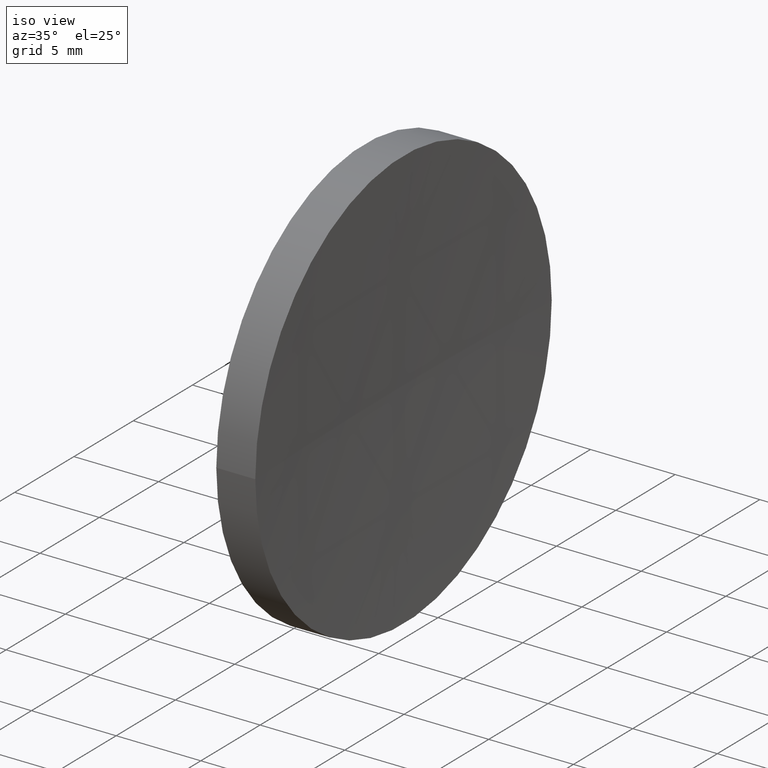
[diagram: clean part render]
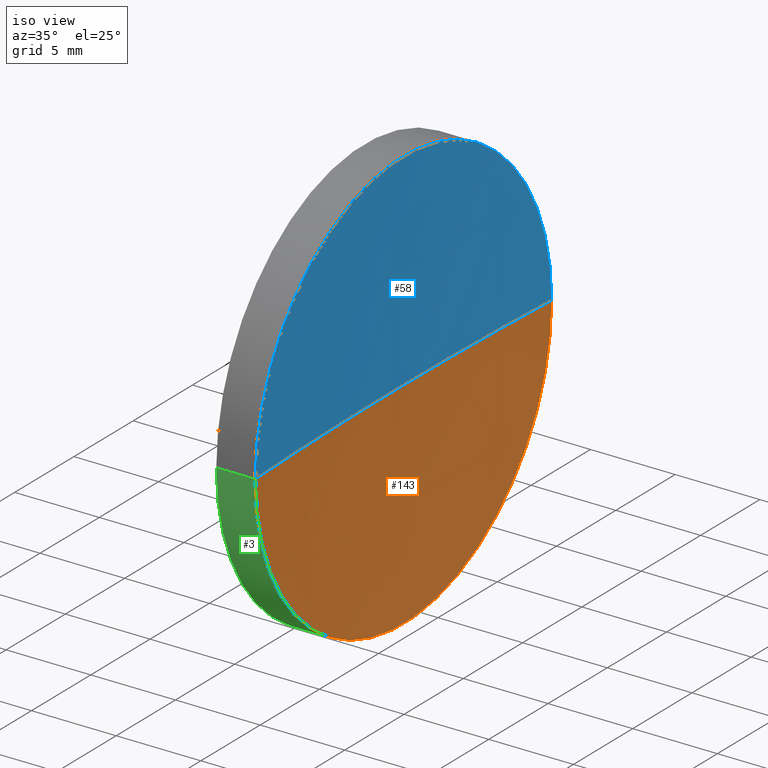
[diagram: same view with three faces highlighted in distinct colors, each labeled with its STEP entity id]
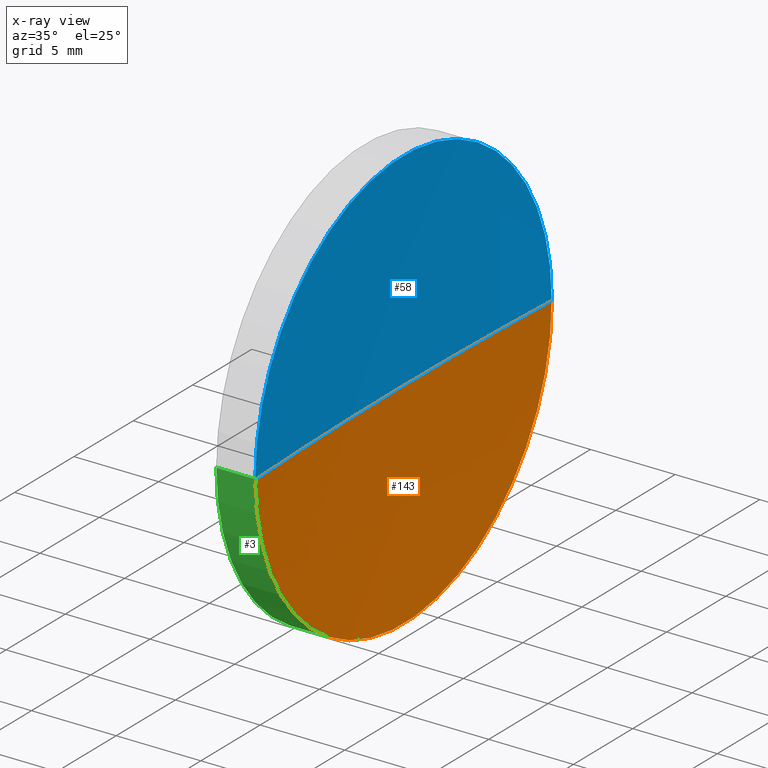
[diagram: x-ray of the same camera — body ghosted, the three highlighted faces saturated]
A machine part, iso view with three faces highlighted in distinct colors.
The next image is the same camera in x-ray (body ghosted, the three faces saturated) — at least one of them is partly hidden behind the body in this view.
Their STEP definitions:

[orange] entity #143 — the highlighted spherical surface has radius 258.18 mm.
#9 = EDGE_CURVE ( 'NONE', #98, #16, #32, .T. ) ;
#11 = DIRECTION ( 'NONE',  ( 0.0000000000000000000, -1.000000000000000000, -1.224646799147353200E-016 ) ) ;
#12 = DIRECTION ( 'NONE',  ( -9.351536221073556900E-032, -1.224646799147353200E-016, 1.000000000000000000 ) ) ;
#16 = VERTEX_POINT ( 'NONE', #48 ) ;
#32 = CIRCLE ( 'NONE', #59, 258.1799999999999500 ) ;
#35 = DIRECTION ( 'NONE',  ( -5.551115123125785700E-016, -1.000000000000000000, 0.0000000000000000000 ) ) ;
#36 = DIRECTION ( 'NONE',  ( -1.000000000000000000, 7.636108817321419600E-016, -0.0000000000000000000 ) ) ;
#38 = DIRECTION ( 'NONE',  ( -1.000000000000000000, 0.0000000000000000000, 0.0000000000000000000 ) ) ;
#39 = EDGE_CURVE ( 'NONE', #94, #98, #92, .T. ) ;
#40 = CARTESIAN_POINT ( 'NONE',  ( 59.66096665815475600, 20.07872591329412500, 0.0000000000000000000 ) ) ;
#48 = CARTESIAN_POINT ( 'NONE',  ( 59.35819015802113100, 32.57872591329334700, 0.0000000000000000000 ) ) ;
#59 = AXIS2_PLACEMENT_3D ( 'NONE', #155, #122, #38 ) ;
#66 = DIRECTION ( 'NONE',  ( -8.600379770897487800E-016, -1.000000000000000000, 0.0000000000000000000 ) ) ;
#69 = ORIENTED_EDGE ( 'NONE', *, *, #39, .F. ) ;
#72 = AXIS2_PLACEMENT_3D ( 'NONE', #89, #12, #11 ) ;
#77 = AXIS2_PLACEMENT_3D ( 'NONE', #121, #36, #35 ) ;
#81 = ORIENTED_EDGE ( 'NONE', *, *, #9, .F. ) ;
#82 = CIRCLE ( 'NONE', #72, 258.1799999999999500 ) ;
#86 = DIRECTION ( 'NONE',  ( 0.0000000000000000000, 0.0000000000000000000, 1.000000000000000000 ) ) ;
#89 = CARTESIAN_POINT ( 'NONE',  ( 317.5381901580211100, 32.57872591329316900, 0.0000000000000000000 ) ) ;
#92 = CIRCLE ( 'NONE', #77, 12.49999999999999300 ) ;
#94 = VERTEX_POINT ( 'NONE', #158 ) ;
#98 = VERTEX_POINT ( 'NONE', #40 ) ;
#108 = ORIENTED_EDGE ( 'NONE', *, *, #137, .T. ) ;
#110 = FACE_OUTER_BOUND ( 'NONE', #131, .T. ) ;
#121 = CARTESIAN_POINT ( 'NONE',  ( 59.66096665815478400, 32.57872591329309100, 0.0000000000000000000 ) ) ;
#122 = DIRECTION ( 'NONE',  ( 0.0000000000000000000, -0.0000000000000000000, -1.000000000000000000 ) ) ;
#127 = CARTESIAN_POINT ( 'NONE',  ( 317.5381901580211100, 32.57872591329316900, 0.0000000000000000000 ) ) ;
#131 = EDGE_LOOP ( 'NONE', ( #69, #108, #81 ) ) ;
#137 = EDGE_CURVE ( 'NONE', #94, #16, #82, .T. ) ;
#143 = ADVANCED_FACE ( 'NONE', ( #110 ), #146, .F. ) ;
#145 = AXIS2_PLACEMENT_3D ( 'NONE', #127, #86, #66 ) ;
#146 = SPHERICAL_SURFACE ( 'NONE', #145, 258.1799999999999500 ) ;
#155 = CARTESIAN_POINT ( 'NONE',  ( 317.5381901580211100, 32.57872591329316900, 0.0000000000000000000 ) ) ;
#158 = CARTESIAN_POINT ( 'NONE',  ( 59.66096665815476300, 45.07872591329232400, 1.530808498934064100E-015 ) ) ;

[blue] entity #58 — the highlighted spherical surface has radius 258.18 mm.
#9 = EDGE_CURVE ( 'NONE', #98, #16, #32, .T. ) ;
#11 = DIRECTION ( 'NONE',  ( 0.0000000000000000000, -1.000000000000000000, -1.224646799147353200E-016 ) ) ;
#12 = DIRECTION ( 'NONE',  ( -9.351536221073556900E-032, -1.224646799147353200E-016, 1.000000000000000000 ) ) ;
#16 = VERTEX_POINT ( 'NONE', #48 ) ;
#17 = SPHERICAL_SURFACE ( 'NONE', #154, 258.1799999999999500 ) ;
#21 = CARTESIAN_POINT ( 'NONE',  ( 59.66096665815478400, 32.57872591329309100, 0.0000000000000000000 ) ) ;
#32 = CIRCLE ( 'NONE', #59, 258.1799999999999500 ) ;
#38 = DIRECTION ( 'NONE',  ( -1.000000000000000000, 0.0000000000000000000, 0.0000000000000000000 ) ) ;
#40 = CARTESIAN_POINT ( 'NONE',  ( 59.66096665815475600, 20.07872591329412500, 0.0000000000000000000 ) ) ;
#47 = CARTESIAN_POINT ( 'NONE',  ( 317.5381901580211100, 32.57872591329316900, 0.0000000000000000000 ) ) ;
#48 = CARTESIAN_POINT ( 'NONE',  ( 59.35819015802113100, 32.57872591329334700, 0.0000000000000000000 ) ) ;
#52 = EDGE_CURVE ( 'NONE', #98, #94, #106, .T. ) ;
#58 = ADVANCED_FACE ( 'NONE', ( #75 ), #17, .F. ) ;
#59 = AXIS2_PLACEMENT_3D ( 'NONE', #155, #122, #38 ) ;
#60 = DIRECTION ( 'NONE',  ( -5.551115123125785700E-016, -1.000000000000000000, 0.0000000000000000000 ) ) ;
#61 = DIRECTION ( 'NONE',  ( -8.600379770897487800E-016, -1.000000000000000000, 0.0000000000000000000 ) ) ;
#72 = AXIS2_PLACEMENT_3D ( 'NONE', #89, #12, #11 ) ;
#73 = EDGE_LOOP ( 'NONE', ( #133, #118, #107 ) ) ;
#75 = FACE_OUTER_BOUND ( 'NONE', #73, .T. ) ;
#82 = CIRCLE ( 'NONE', #72, 258.1799999999999500 ) ;
#89 = CARTESIAN_POINT ( 'NONE',  ( 317.5381901580211100, 32.57872591329316900, 0.0000000000000000000 ) ) ;
#93 = AXIS2_PLACEMENT_3D ( 'NONE', #21, #120, #60 ) ;
#94 = VERTEX_POINT ( 'NONE', #158 ) ;
#98 = VERTEX_POINT ( 'NONE', #40 ) ;
#106 = CIRCLE ( 'NONE', #93, 12.49999999999999300 ) ;
#107 = ORIENTED_EDGE ( 'NONE', *, *, #9, .T. ) ;
#118 = ORIENTED_EDGE ( 'NONE', *, *, #52, .F. ) ;
#120 = DIRECTION ( 'NONE',  ( -1.000000000000000000, 7.636108817321419600E-016, -0.0000000000000000000 ) ) ;
#122 = DIRECTION ( 'NONE',  ( 0.0000000000000000000, -0.0000000000000000000, -1.000000000000000000 ) ) ;
#133 = ORIENTED_EDGE ( 'NONE', *, *, #137, .F. ) ;
#134 = DIRECTION ( 'NONE',  ( 0.0000000000000000000, 0.0000000000000000000, 1.000000000000000000 ) ) ;
#137 = EDGE_CURVE ( 'NONE', #94, #16, #82, .T. ) ;
#154 = AXIS2_PLACEMENT_3D ( 'NONE', #47, #134, #61 ) ;
#155 = CARTESIAN_POINT ( 'NONE',  ( 317.5381901580211100, 32.57872591329316900, 0.0000000000000000000 ) ) ;
#158 = CARTESIAN_POINT ( 'NONE',  ( 59.66096665815476300, 45.07872591329232400, 1.530808498934064100E-015 ) ) ;

[green] entity #3 — the highlighted cylindrical surface (partial cylindrical patch) has radius 12.5 mm, axis along (-1, 0, -0).
#2 = CARTESIAN_POINT ( 'NONE',  ( 55.00739462442118100, 32.57872591329309800, 0.0000000000000000000 ) ) ;
#3 = ADVANCED_FACE ( 'NONE', ( #43 ), #111, .T. ) ;
#14 = CIRCLE ( 'NONE', #80, 12.49999999999999600 ) ;
#22 = DIRECTION ( 'NONE',  ( -1.000000000000000000, 7.636108817321419600E-016, -0.0000000000000000000 ) ) ;
#25 = VECTOR ( 'NONE', #148, 1000.000000000000000 ) ;
#33 = LINE ( 'NONE', #104, #25 ) ;
#34 = ORIENTED_EDGE ( 'NONE', *, *, #130, .F. ) ;
#35 = DIRECTION ( 'NONE',  ( -5.551115123125785700E-016, -1.000000000000000000, 0.0000000000000000000 ) ) ;
#36 = DIRECTION ( 'NONE',  ( -1.000000000000000000, 7.636108817321419600E-016, -0.0000000000000000000 ) ) ;
#39 = EDGE_CURVE ( 'NONE', #94, #98, #92, .T. ) ;
#40 = CARTESIAN_POINT ( 'NONE',  ( 59.66096665815475600, 20.07872591329412500, 0.0000000000000000000 ) ) ;
#43 = FACE_OUTER_BOUND ( 'NONE', #83, .T. ) ;
#49 = ORIENTED_EDGE ( 'NONE', *, *, #140, .T. ) ;
#64 = DIRECTION ( 'NONE',  ( -1.000000000000000000, 7.636108817321419600E-016, -0.0000000000000000000 ) ) ;
#74 = CARTESIAN_POINT ( 'NONE',  ( 55.00739462442118800, 45.07872591329309100, 1.530808498934191100E-015 ) ) ;
#76 = DIRECTION ( 'NONE',  ( -5.551115123125784700E-016, -1.000000000000000000, 0.0000000000000000000 ) ) ;
#77 = AXIS2_PLACEMENT_3D ( 'NONE', #121, #36, #35 ) ;
#80 = AXIS2_PLACEMENT_3D ( 'NONE', #159, #64, #76 ) ;
#83 = EDGE_LOOP ( 'NONE', ( #147, #142, #49, #34 ) ) ;
#92 = CIRCLE ( 'NONE', #77, 12.49999999999999300 ) ;
#94 = VERTEX_POINT ( 'NONE', #158 ) ;
#95 = DIRECTION ( 'NONE',  ( -5.551115123125784700E-016, -1.000000000000000000, 0.0000000000000000000 ) ) ;
#96 = VECTOR ( 'NONE', #149, 1000.000000000000000 ) ;
#98 = VERTEX_POINT ( 'NONE', #40 ) ;
#104 = CARTESIAN_POINT ( 'NONE',  ( 55.00739462442117400, 20.07872591329309800, 0.0000000000000000000 ) ) ;
#111 = CYLINDRICAL_SURFACE ( 'NONE', #144, 12.49999999999999600 ) ;
#119 = EDGE_CURVE ( 'NONE', #94, #166, #165, .T. ) ;
#121 = CARTESIAN_POINT ( 'NONE',  ( 59.66096665815478400, 32.57872591329309100, 0.0000000000000000000 ) ) ;
#124 = CARTESIAN_POINT ( 'NONE',  ( 57.35819015802110200, 20.07872591329309800, 0.0000000000000000000 ) ) ;
#129 = VERTEX_POINT ( 'NONE', #124 ) ;
#130 = EDGE_CURVE ( 'NONE', #166, #129, #14, .T. ) ;
#140 = EDGE_CURVE ( 'NONE', #98, #129, #33, .T. ) ;
#142 = ORIENTED_EDGE ( 'NONE', *, *, #39, .T. ) ;
#144 = AXIS2_PLACEMENT_3D ( 'NONE', #2, #22, #95 ) ;
#147 = ORIENTED_EDGE ( 'NONE', *, *, #119, .F. ) ;
#148 = DIRECTION ( 'NONE',  ( -1.000000000000000000, 7.636108817321419600E-016, -0.0000000000000000000 ) ) ;
#149 = DIRECTION ( 'NONE',  ( -1.000000000000000000, 7.636108817321419600E-016, -0.0000000000000000000 ) ) ;
#150 = CARTESIAN_POINT ( 'NONE',  ( 57.35819015802111700, 45.07872591329309100, 1.530808498934191500E-015 ) ) ;
#158 = CARTESIAN_POINT ( 'NONE',  ( 59.66096665815476300, 45.07872591329232400, 1.530808498934064100E-015 ) ) ;
#159 = CARTESIAN_POINT ( 'NONE',  ( 57.35819015802111000, 32.57872591329309800, 0.0000000000000000000 ) ) ;
#165 = LINE ( 'NONE', #74, #96 ) ;
#166 = VERTEX_POINT ( 'NONE', #150 ) ;